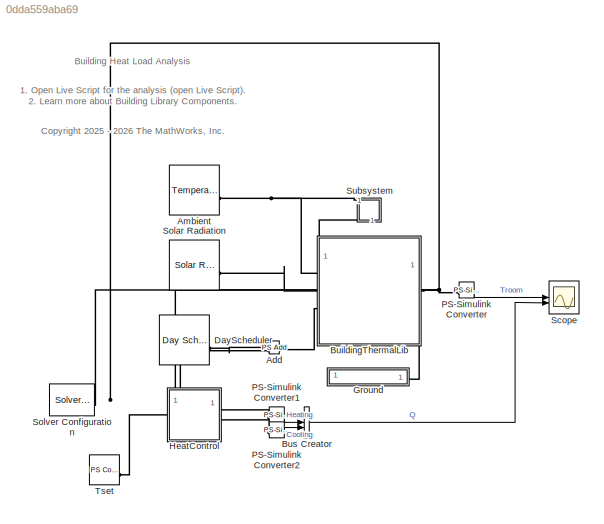
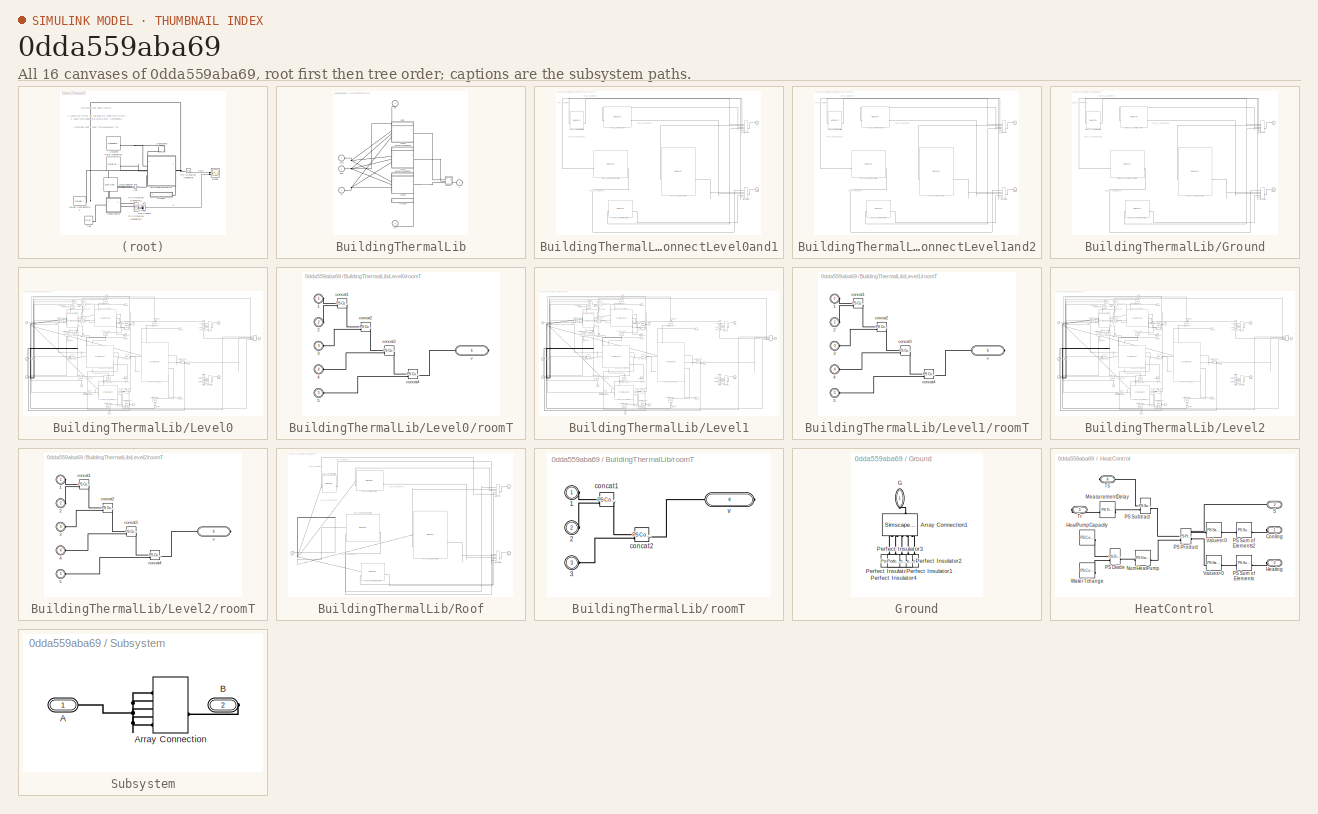
[diagram: thumbnail index - all 16 canvases of the model, root first then tree order]
MODEL slx_0dda559aba69
KIND model
CONFIG AbsTol = 1e-3
CONFIG FixedStep = 3600
CONFIG SolverName = ode1be
CONFIG StopTime = 31532400
BLOCK [Reference] Add  REF=fl_lib/Physical Signals/Functions/PS Add
  SourceBlock = fl_lib/Physical Signals/Functions/PS Add
  SourceType = PS Add
BLOCK [Reference] Ambient  REF=TemperatureSource_lib/Temperature Source
(LUT)
  SourceBlock = TemperatureSource_lib/Temperature Source\n(LUT)
  SourceType = Temperature Source\n(LUT)
BLOCK [SubSystem] BuildingThermalLib
  AncestorBlock = lib_BuildingThermal/BuildingThermalLib
  PortSchema = {"entries":[{"content":{"sides":[{"content":{"connectorIds":["LConn1","LConn2","LConn3"]},"type":"ConnectorPlacement.EquallySpacedRectSide","uuid":"02f2e3a8-9f92-46e9-bc8d-cac18fd60cc5"},{"content":{"connectorIds":["RConn1"],"side":"RIGHT"},"type":"ConnectorPlacement.EquallySpacedRectSide","uuid":"8e7293df-d9e6-4251-9074-f41050b516bb"},{"content":{"connectorIds":["LConn4"],"side":"TOP"},"type":"Co...<+423ch>
BLOCK [PMIOPort] BuildingThermalLib/Amb
  Side = Left
BLOCK [SubSystem] BuildingThermalLib/ConnectLevel0and1
  PortSchema = {"entries":[{"content":{"sides":[{"content":{},"type":"ConnectorPlacement.EquallySpacedRectSide","uuid":"3fb70943-7938-4a07-9cd8-fdf0c154c089"},{"content":{"side":"RIGHT"},"type":"ConnectorPlacement.EquallySpacedRectSide","uuid":"05a521c1-d6a1-4200-9b83-3d3259291215"},{"content":{"connectorIds":["LConn1"],"side":"TOP"},"type":"ConnectorPlacement.EquallySpacedRectSide","uuid":"456762b1-d32b-4bbd-9e...<+354ch>  <repeated x3 — deduplicated; at blocks: ConnectLevel0and1, ConnectLevel1and2, Ground>
  ShowPortLabels = none
BLOCK [SimscapeArrayConnection] BuildingThermalLib/ConnectLevel0and1/ArrayBottom
  ConcatenateDimension = 1
  Domain = foundation.thermal.thermal
  NumScalarElements = 5
BLOCK [SimscapeArrayConnection] BuildingThermalLib/ConnectLevel0and1/ArrayTop
  ConcatenateDimension = 1
  Domain = foundation.thermal.thermal
  NumScalarElements = 5
BLOCK [PMIOPort] BuildingThermalLib/ConnectLevel0and1/Bottom
  Port = 2
  Side = Right
BLOCK [Reference] BuildingThermalLib/ConnectLevel0and1/Floor_A1R1(LivingRoom)Blk  REF=WallSelector_lib/Wall Selector
  SourceBlock = WallSelector_lib/Wall Selector
  SourceType = Wall Selector
BLOCK [Reference] BuildingThermalLib/ConnectLevel0and1/Floor_A1R2(Bedroom)Blk  REF=WallSelector_lib/Wall Selector
  SourceBlock = WallSelector_lib/Wall Selector
  SourceType = Wall Selector
BLOCK [Reference] BuildingThermalLib/ConnectLevel0and1/Floor_A1R3(Kitchen)Blk  REF=WallSelector_lib/Wall Selector
  SourceBlock = WallSelector_lib/Wall Selector
  SourceType = Wall Selector
BLOCK [Reference] BuildingThermalLib/ConnectLevel0and1/Floor_A1R4(Bathroom)Blk  REF=WallSelector_lib/Wall Selector
  SourceBlock = WallSelector_lib/Wall Selector
  SourceType = Wall Selector
BLOCK [Reference] BuildingThermalLib/ConnectLevel0and1/Floor_A1R5(FireExit)Blk  REF=WallSelector_lib/Wall Selector
  SourceBlock = WallSelector_lib/Wall Selector
  SourceType = Wall Selector
BLOCK [PMIOPort] BuildingThermalLib/ConnectLevel0and1/Top
  Side = Left
BLOCK [SubSystem] BuildingThermalLib/ConnectLevel1and2
  ShowPortLabels = none
BLOCK [SimscapeArrayConnection] BuildingThermalLib/ConnectLevel1and2/ArrayBottom
  ConcatenateDimension = 1
  Domain = foundation.thermal.thermal
  NumScalarElements = 5
BLOCK [SimscapeArrayConnection] BuildingThermalLib/ConnectLevel1and2/ArrayTop
  ConcatenateDimension = 1
  Domain = foundation.thermal.thermal
  NumScalarElements = 5
BLOCK [PMIOPort] BuildingThermalLib/ConnectLevel1and2/Bottom
  Port = 2
  Side = Right
BLOCK [Reference] BuildingThermalLib/ConnectLevel1and2/Floor_A2R1(LivingRoom)Blk  REF=WallSelector_lib/Wall Selector
  SourceBlock = WallSelector_lib/Wall Selector
  SourceType = Wall Selector
BLOCK [Reference] BuildingThermalLib/ConnectLevel1and2/Floor_A2R2(Bedroom)Blk  REF=WallSelector_lib/Wall Selector
  SourceBlock = WallSelector_lib/Wall Selector
  SourceType = Wall Selector
BLOCK [Reference] BuildingThermalLib/ConnectLevel1and2/Floor_A2R3(Kitchen)Blk  REF=WallSelector_lib/Wall Selector
  SourceBlock = WallSelector_lib/Wall Selector
  SourceType = Wall Selector
BLOCK [Reference] BuildingThermalLib/ConnectLevel1and2/Floor_A2R4(Bathroom)Blk  REF=WallSelector_lib/Wall Selector
  SourceBlock = WallSelector_lib/Wall Selector
  SourceType = Wall Selector
BLOCK [Reference] BuildingThermalLib/ConnectLevel1and2/Floor_A2R5(FireExit)Blk  REF=WallSelector_lib/Wall Selector
  SourceBlock = WallSelector_lib/Wall Selector
  SourceType = Wall Selector
BLOCK [PMIOPort] BuildingThermalLib/ConnectLevel1and2/Top
  Side = Left
BLOCK [PMIOPort] BuildingThermalLib/Gr
  NameLocation = right
  Port = 6
  Side = Right
BLOCK [SubSystem] BuildingThermalLib/Ground
  ShowPortLabels = none
BLOCK [SimscapeArrayConnection] BuildingThermalLib/Ground/ArrayBottom
  ConcatenateDimension = 1
  Domain = foundation.thermal.thermal
  NumScalarElements = 5
BLOCK [SimscapeArrayConnection] BuildingThermalLib/Ground/ArrayTop
  ConcatenateDimension = 1
  Domain = foundation.thermal.thermal
  NumScalarElements = 5
BLOCK [PMIOPort] BuildingThermalLib/Ground/Bottom
  Port = 2
  Side = Right
BLOCK [Reference] BuildingThermalLib/Ground/Ground_A1R1(LivingRoom)Blk  REF=WallSelector_lib/Wall Selector
  SourceBlock = WallSelector_lib/Wall Selector
  SourceType = Wall Selector
BLOCK [Reference] BuildingThermalLib/Ground/Ground_A1R2(Bedroom)Blk  REF=WallSelector_lib/Wall Selector
  SourceBlock = WallSelector_lib/Wall Selector
  SourceType = Wall Selector
BLOCK [Reference] BuildingThermalLib/Ground/Ground_A1R3(Kitchen)Blk  REF=WallSelector_lib/Wall Selector
  SourceBlock = WallSelector_lib/Wall Selector
  SourceType = Wall Selector
BLOCK [Reference] BuildingThermalLib/Ground/Ground_A1R4(Bathroom)Blk  REF=WallSelector_lib/Wall Selector
  SourceBlock = WallSelector_lib/Wall Selector
  SourceType = Wall Selector
BLOCK [Reference] BuildingThermalLib/Ground/Ground_A1R5(FireExit)Blk  REF=WallSelector_lib/Wall Selector
  SourceBlock = WallSelector_lib/Wall Selector
  SourceType = Wall Selector
BLOCK [PMIOPort] BuildingThermalLib/Ground/Top
  Side = Left
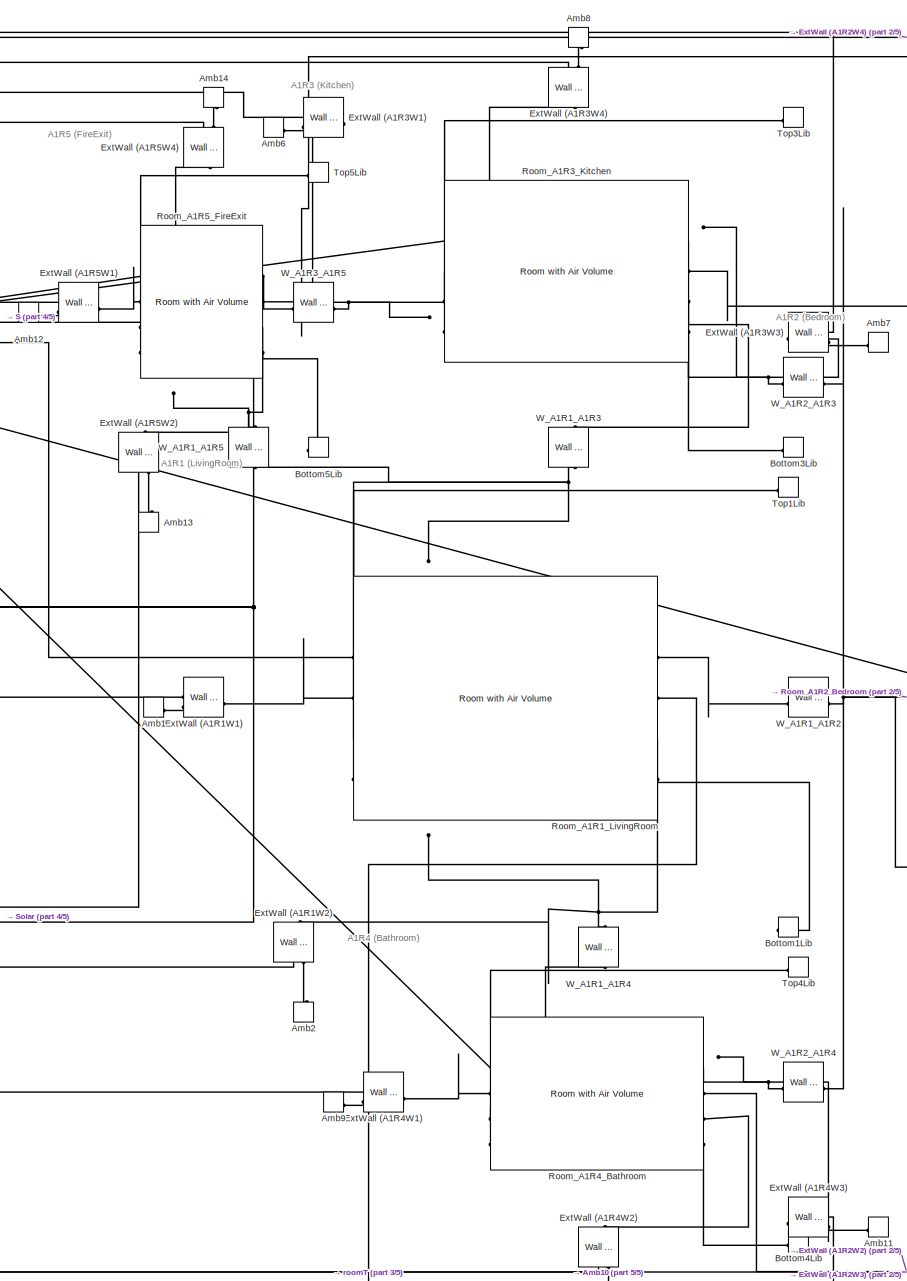
[diagram: BuildingThermalLib/Level0 - part 1/5, left side, full height]
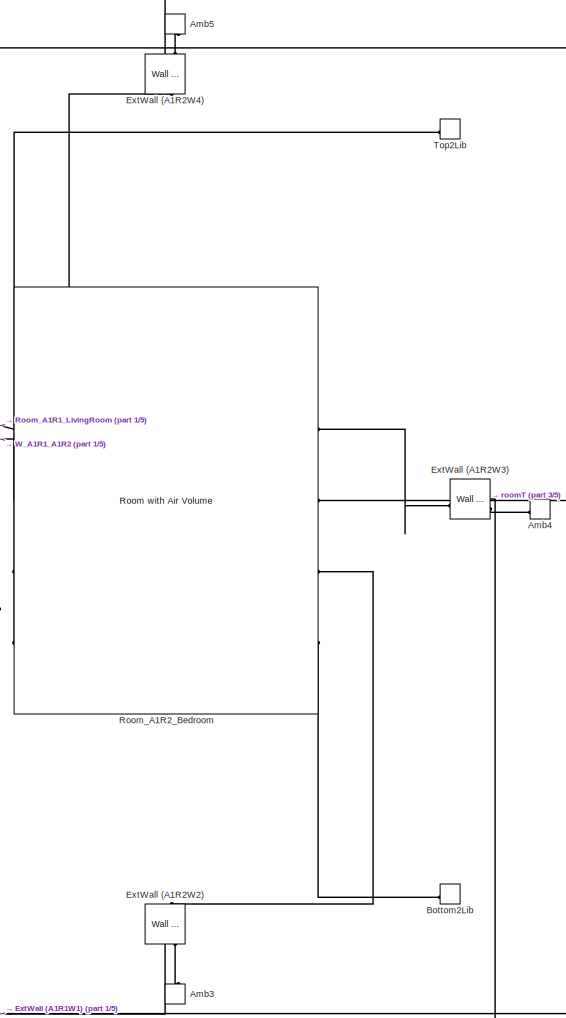
[diagram: BuildingThermalLib/Level0 - part 2/5, center side, full height]
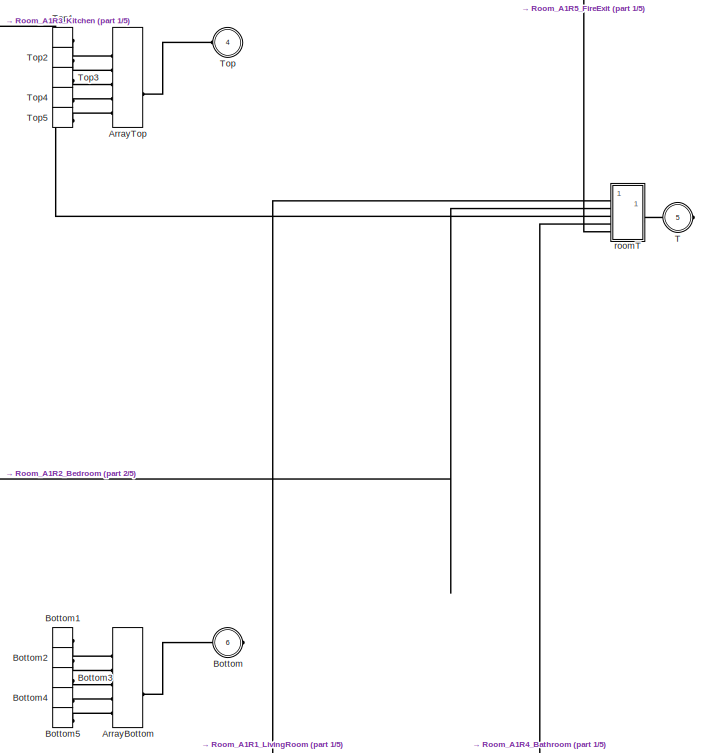
[diagram: BuildingThermalLib/Level0 - part 3/5, middle right region]
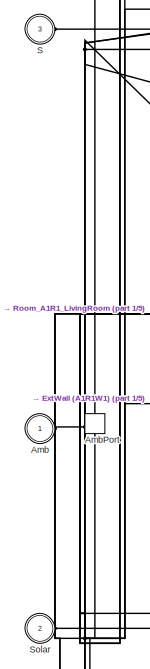
[diagram: BuildingThermalLib/Level0 - part 4/5, middle left region]
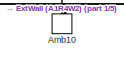
[diagram: BuildingThermalLib/Level0 - part 5/5, bottom center region]
BLOCK [SubSystem] BuildingThermalLib/Level0
  PortSchema = {"entries":[{"content":{"sides":[{"content":{"connectorIds":["LConn1","LConn2","LConn3"]},"type":"ConnectorPlacement.EquallySpacedRectSide","uuid":"5074afe5-1eb3-4154-99f1-11d56108c9ad"},{"content":{"connectorIds":["RConn1"],"side":"RIGHT"},"type":"ConnectorPlacement.EquallySpacedRectSide","uuid":"e70542b5-eb54-43d5-a4ec-335ad714f0fc"},{"content":{"connectorIds":["LConn4"],"side":"TOP"},"type":"Co...<+423ch>  <repeated x3 — deduplicated; at blocks: Level0, Level1, Level2>
BLOCK [PMIOPort] BuildingThermalLib/Level0/Amb
  Side = Left
BLOCK [ConnectionLabel] BuildingThermalLib/Level0/Amb1
  Label = A
BLOCK [ConnectionLabel] BuildingThermalLib/Level0/Amb10
  Label = A
  NameLocation = right
BLOCK [ConnectionLabel] BuildingThermalLib/Level0/Amb11
  Label = A
BLOCK [ConnectionLabel] BuildingThermalLib/Level0/Amb12
  Label = A
BLOCK [ConnectionLabel] BuildingThermalLib/Level0/Amb13
  Label = A
  NameLocation = right
BLOCK [ConnectionLabel] BuildingThermalLib/Level0/Amb14
  Label = A
  NameLocation = right
BLOCK [ConnectionLabel] BuildingThermalLib/Level0/Amb2
  Label = A
  NameLocation = right
BLOCK [ConnectionLabel] BuildingThermalLib/Level0/Amb3
  Label = A
  NameLocation = right
BLOCK [ConnectionLabel] BuildingThermalLib/Level0/Amb4
  Label = A
BLOCK [ConnectionLabel] BuildingThermalLib/Level0/Amb5
  Label = A
  NameLocation = right
BLOCK [ConnectionLabel] BuildingThermalLib/Level0/Amb6
  Label = A
BLOCK [ConnectionLabel] BuildingThermalLib/Level0/Amb7
  Label = A
BLOCK [ConnectionLabel] BuildingThermalLib/Level0/Amb8
  Label = A
  NameLocation = right
BLOCK [ConnectionLabel] BuildingThermalLib/Level0/Amb9
  Label = A
BLOCK [ConnectionLabel] BuildingThermalLib/Level0/AmbPort
  Label = A
BLOCK [SimscapeArrayConnection] BuildingThermalLib/Level0/ArrayBottom
  ConcatenateDimension = 1
  Domain = foundation.thermal.thermal
  NumScalarElements = 5
BLOCK [SimscapeArrayConnection] BuildingThermalLib/Level0/ArrayTop
  ConcatenateDimension = 1
  Domain = foundation.thermal.thermal
  NumScalarElements = 5
BLOCK [PMIOPort] BuildingThermalLib/Level0/Bottom
  Port = 6
  Side = Right
BLOCK [ConnectionLabel] BuildingThermalLib/Level0/Bottom1
  Label = Bottom1
BLOCK [ConnectionLabel] BuildingThermalLib/Level0/Bottom1Lib
  Label = Bottom1
BLOCK [ConnectionLabel] BuildingThermalLib/Level0/Bottom2
  Label = Bottom2
BLOCK [ConnectionLabel] BuildingThermalLib/Level0/Bottom2Lib
  Label = Bottom2
BLOCK [ConnectionLabel] BuildingThermalLib/Level0/Bottom3
  Label = Bottom3
BLOCK [ConnectionLabel] BuildingThermalLib/Level0/Bottom3Lib
  Label = Bottom3
BLOCK [ConnectionLabel] BuildingThermalLib/Level0/Bottom4
  Label = Bottom4
BLOCK [ConnectionLabel] BuildingThermalLib/Level0/Bottom4Lib
  Label = Bottom4
BLOCK [ConnectionLabel] BuildingThermalLib/Level0/Bottom5
  Label = Bottom5
BLOCK [ConnectionLabel] BuildingThermalLib/Level0/Bottom5Lib
  Label = Bottom5
BLOCK [Reference] BuildingThermalLib/Level0/ExtWall (A1R1W1)  REF=ExternalWall_lib/Wall External
  SourceBlock = ExternalWall_lib/Wall External
  SourceType = Wall External
BLOCK [Reference] BuildingThermalLib/Level0/ExtWall (A1R1W2)  REF=ExternalWall_lib/Wall External
  NameLocation = right
  SourceBlock = ExternalWall_lib/Wall External
  SourceType = Wall External
BLOCK [Reference] BuildingThermalLib/Level0/ExtWall (A1R2W2)  REF=ExternalWall_lib/Wall External
  NameLocation = right
  SourceBlock = ExternalWall_lib/Wall External
  SourceType = Wall External
BLOCK [Reference] BuildingThermalLib/Level0/ExtWall (A1R2W3)  REF=ExternalWall_lib/Wall External
  SourceBlock = ExternalWall_lib/Wall External
  SourceType = Wall External
BLOCK [Reference] BuildingThermalLib/Level0/ExtWall (A1R2W4)  REF=ExternalWall_lib/Wall External
  NameLocation = right
  SourceBlock = ExternalWall_lib/Wall External
  SourceType = Wall External
BLOCK [Reference] BuildingThermalLib/Level0/ExtWall (A1R3W1)  REF=ExternalWall_lib/Wall External
  SourceBlock = ExternalWall_lib/Wall External
  SourceType = Wall External
BLOCK [Reference] BuildingThermalLib/Level0/ExtWall (A1R3W3)  REF=ExternalWall_lib/Wall External
  SourceBlock = ExternalWall_lib/Wall External
  SourceType = Wall External
BLOCK [Reference] BuildingThermalLib/Level0/ExtWall (A1R3W4)  REF=ExternalWall_lib/Wall External
  NameLocation = right
  SourceBlock = ExternalWall_lib/Wall External
  SourceType = Wall External
BLOCK [Reference] BuildingThermalLib/Level0/ExtWall (A1R4W1)  REF=ExternalWall_lib/Wall External
  SourceBlock = ExternalWall_lib/Wall External
  SourceType = Wall External
BLOCK [Reference] BuildingThermalLib/Level0/ExtWall (A1R4W2)  REF=ExternalWall_lib/Wall External
  NameLocation = right
  SourceBlock = ExternalWall_lib/Wall External
  SourceType = Wall External
BLOCK [Reference] BuildingThermalLib/Level0/ExtWall (A1R4W3)  REF=ExternalWall_lib/Wall External
  SourceBlock = ExternalWall_lib/Wall External
  SourceType = Wall External
BLOCK [Reference] BuildingThermalLib/Level0/ExtWall (A1R5W1)  REF=ExternalWall_lib/Wall External
  SourceBlock = ExternalWall_lib/Wall External
  SourceType = Wall External
BLOCK [Reference] BuildingThermalLib/Level0/ExtWall (A1R5W2)  REF=ExternalWall_lib/Wall External
  NameLocation = right
  SourceBlock = ExternalWall_lib/Wall External
  SourceType = Wall External
BLOCK [Reference] BuildingThermalLib/Level0/ExtWall (A1R5W4)  REF=ExternalWall_lib/Wall External
  NameLocation = right
  SourceBlock = ExternalWall_lib/Wall External
  SourceType = Wall External
BLOCK [Reference] BuildingThermalLib/Level0/Room_A1R1_LivingRoom  REF=RoomWithAirVolume/Room with Air Volume
  SourceBlock = RoomWithAirVolume/Room with Air Volume
BLOCK [Reference] BuildingThermalLib/Level0/Room_A1R2_Bedroom  REF=RoomWithAirVolume/Room with Air Volume
  SourceBlock = RoomWithAirVolume/Room with Air Volume
BLOCK [Reference] BuildingThermalLib/Level0/Room_A1R3_Kitchen  REF=RoomWithAirVolume/Room with Air Volume
  SourceBlock = RoomWithAirVolume/Room with Air Volume
BLOCK [Reference] BuildingThermalLib/Level0/Room_A1R4_Bathroom  REF=RoomWithAirVolume/Room with Air Volume
  SourceBlock = RoomWithAirVolume/Room with Air Volume
BLOCK [Reference] BuildingThermalLib/Level0/Room_A1R5_FireExit  REF=RoomWithAirVolume/Room with Air Volume
  SourceBlock = RoomWithAirVolume/Room with Air Volume
BLOCK [PMIOPort] BuildingThermalLib/Level0/S
  Port = 3
  Side = Left
BLOCK [PMIOPort] BuildingThermalLib/Level0/Solar
  Port = 2
  Side = Left
BLOCK [PMIOPort] BuildingThermalLib/Level0/T
  Port = 5
  Side = Right
BLOCK [PMIOPort] BuildingThermalLib/Level0/Top
  Port = 4
  Side = Left
BLOCK [ConnectionLabel] BuildingThermalLib/Level0/Top1
  Label = Top1
BLOCK [ConnectionLabel] BuildingThermalLib/Level0/Top1Lib
  Label = Top1
BLOCK [ConnectionLabel] BuildingThermalLib/Level0/Top2
  Label = Top2
BLOCK [ConnectionLabel] BuildingThermalLib/Level0/Top2Lib
  Label = Top2
BLOCK [ConnectionLabel] BuildingThermalLib/Level0/Top3
  Label = Top3
BLOCK [ConnectionLabel] BuildingThermalLib/Level0/Top3Lib
  Label = Top3
BLOCK [ConnectionLabel] BuildingThermalLib/Level0/Top4
  Label = Top4
BLOCK [ConnectionLabel] BuildingThermalLib/Level0/Top4Lib
  Label = Top4
BLOCK [ConnectionLabel] BuildingThermalLib/Level0/Top5
  Label = Top5
BLOCK [ConnectionLabel] BuildingThermalLib/Level0/Top5Lib
  Label = Top5
BLOCK [Reference] BuildingThermalLib/Level0/W_A1R1_A1R2  REF=WallSelector_lib/Wall Selector
  SourceBlock = WallSelector_lib/Wall Selector
  SourceType = Wall Selector
BLOCK [Reference] BuildingThermalLib/Level0/W_A1R1_A1R3  REF=WallSelector_lib/Wall Selector
  NameLocation = right
  SourceBlock = WallSelector_lib/Wall Selector
  SourceType = Wall Selector
BLOCK [Reference] BuildingThermalLib/Level0/W_A1R1_A1R4  REF=WallSelector_lib/Wall Selector
  NameLocation = right
  SourceBlock = WallSelector_lib/Wall Selector
  SourceType = Wall Selector
BLOCK [Reference] BuildingThermalLib/Level0/W_A1R1_A1R5  REF=WallSelector_lib/Wall Selector
  NameLocation = right
  SourceBlock = WallSelector_lib/Wall Selector
  SourceType = Wall Selector
BLOCK [Reference] BuildingThermalLib/Level0/W_A1R2_A1R3  REF=WallSelector_lib/Wall Selector
  SourceBlock = WallSelector_lib/Wall Selector
  SourceType = Wall Selector
BLOCK [Reference] BuildingThermalLib/Level0/W_A1R2_A1R4  REF=WallSelector_lib/Wall Selector
  SourceBlock = WallSelector_lib/Wall Selector
  SourceType = Wall Selector
BLOCK [Reference] BuildingThermalLib/Level0/W_A1R3_A1R5  REF=WallSelector_lib/Wall Selector
  SourceBlock = WallSelector_lib/Wall Selector
  SourceType = Wall Selector
BLOCK [SubSystem] BuildingThermalLib/Level0/roomT
  ShowPortLabels = none
BLOCK [PMIOPort] BuildingThermalLib/Level0/roomT/1
  Side = Left
BLOCK [PMIOPort] BuildingThermalLib/Level0/roomT/2
  Port = 2
  Side = Left
BLOCK [PMIOPort] BuildingThermalLib/Level0/roomT/3
  Port = 3
  Side = Left
BLOCK [PMIOPort] BuildingThermalLib/Level0/roomT/4
  Port = 4
  Side = Left
BLOCK [PMIOPort] BuildingThermalLib/Level0/roomT/5
  Port = 5
  Side = Left
BLOCK [Reference] BuildingThermalLib/Level0/roomT/concat1  REF=fl_lib/Physical Signals/Functions/PS Concatenate
  SourceBlock = fl_lib/Physical Signals/Functions/PS Concatenate
  SourceType = PS Concatenate
BLOCK [Reference] BuildingThermalLib/Level0/roomT/concat2  REF=fl_lib/Physical Signals/Functions/PS Concatenate
  SourceBlock = fl_lib/Physical Signals/Functions/PS Concatenate
  SourceType = PS Concatenate
BLOCK [Reference] BuildingThermalLib/Level0/roomT/concat3  REF=fl_lib/Physical Signals/Functions/PS Concatenate
  SourceBlock = fl_lib/Physical Signals/Functions/PS Concatenate
  SourceType = PS Concatenate
BLOCK [Reference] BuildingThermalLib/Level0/roomT/concat4  REF=fl_lib/Physical Signals/Functions/PS Concatenate
  SourceBlock = fl_lib/Physical Signals/Functions/PS Concatenate
  SourceType = PS Concatenate
BLOCK [PMIOPort] BuildingThermalLib/Level0/roomT/v
  Port = 6
  Side = Right
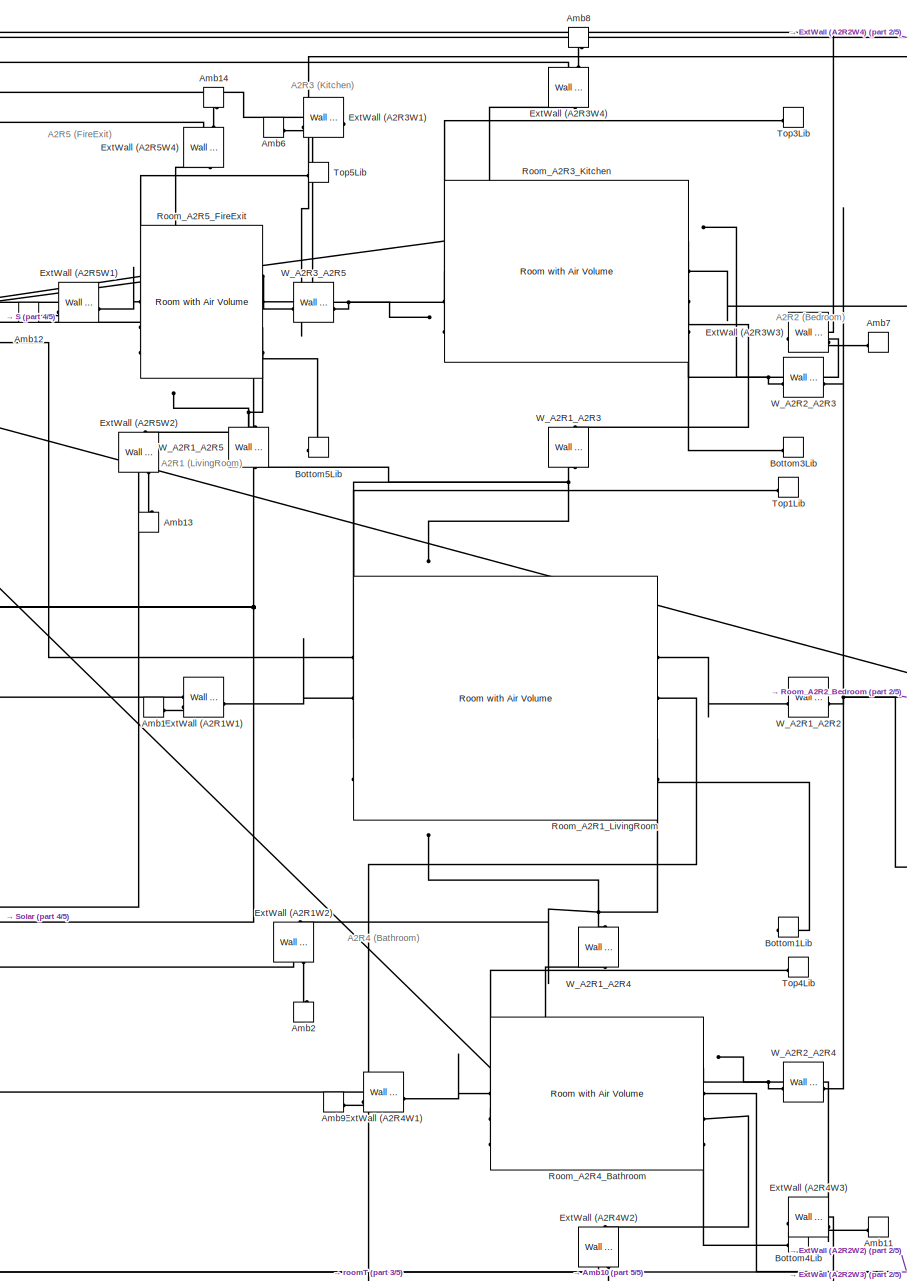
[diagram: BuildingThermalLib/Level1 - part 1/5, left side, full height]
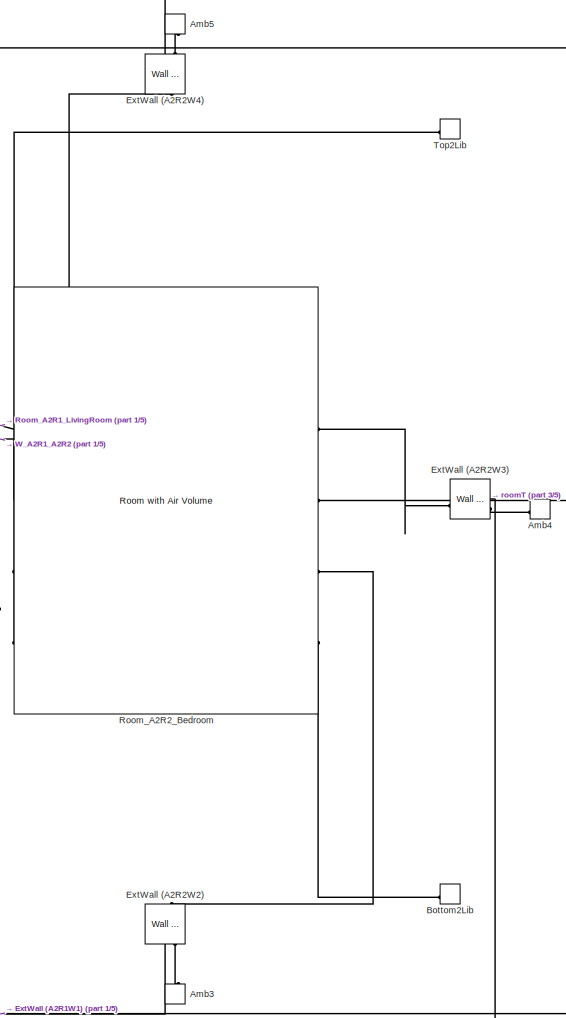
[diagram: BuildingThermalLib/Level1 - part 2/5, center side, full height]
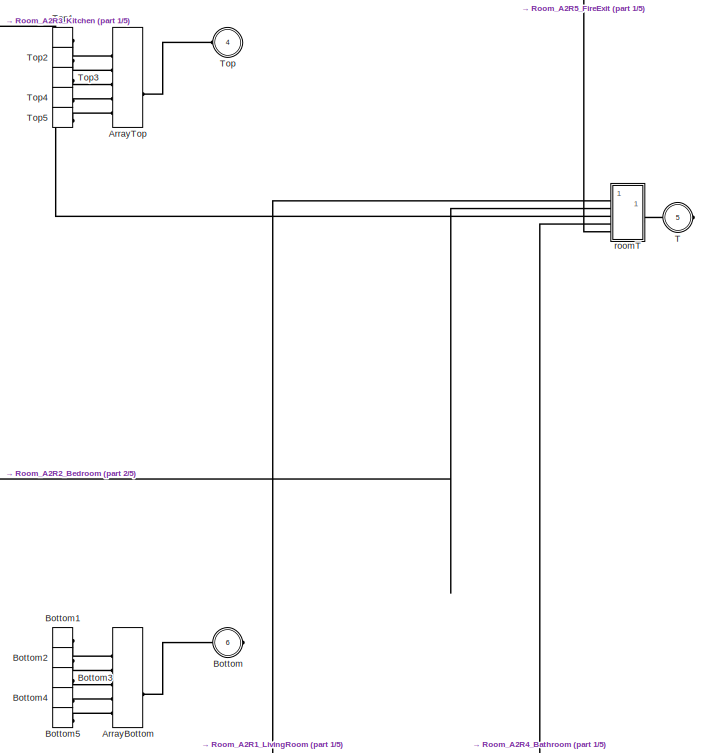
[diagram: BuildingThermalLib/Level1 - part 3/5, middle right region]
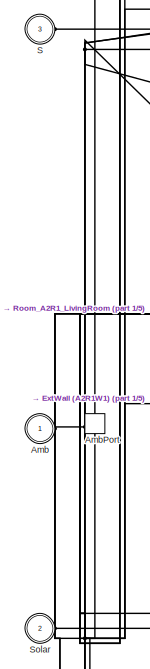
[diagram: BuildingThermalLib/Level1 - part 4/5, middle left region]
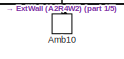
[diagram: BuildingThermalLib/Level1 - part 5/5, bottom center region]
BLOCK [SubSystem] BuildingThermalLib/Level1
BLOCK [PMIOPort] BuildingThermalLib/Level1/Amb
  Side = Left
BLOCK [ConnectionLabel] BuildingThermalLib/Level1/Amb1
  Label = A
BLOCK [ConnectionLabel] BuildingThermalLib/Level1/Amb10
  Label = A
  NameLocation = right
BLOCK [ConnectionLabel] BuildingThermalLib/Level1/Amb11
  Label = A
BLOCK [ConnectionLabel] BuildingThermalLib/Level1/Amb12
  Label = A
BLOCK [ConnectionLabel] BuildingThermalLib/Level1/Amb13
  Label = A
  NameLocation = right
BLOCK [ConnectionLabel] BuildingThermalLib/Level1/Amb14
  Label = A
  NameLocation = right
BLOCK [ConnectionLabel] BuildingThermalLib/Level1/Amb2
  Label = A
  NameLocation = right
BLOCK [ConnectionLabel] BuildingThermalLib/Level1/Amb3
  Label = A
  NameLocation = right
BLOCK [ConnectionLabel] BuildingThermalLib/Level1/Amb4
  Label = A
BLOCK [ConnectionLabel] BuildingThermalLib/Level1/Amb5
  Label = A
  NameLocation = right
BLOCK [ConnectionLabel] BuildingThermalLib/Level1/Amb6
  Label = A
BLOCK [ConnectionLabel] BuildingThermalLib/Level1/Amb7
  Label = A
BLOCK [ConnectionLabel] BuildingThermalLib/Level1/Amb8
  Label = A
  NameLocation = right
BLOCK [ConnectionLabel] BuildingThermalLib/Level1/Amb9
  Label = A
BLOCK [ConnectionLabel] BuildingThermalLib/Level1/AmbPort
  Label = A
BLOCK [SimscapeArrayConnection] BuildingThermalLib/Level1/ArrayBottom
  ConcatenateDimension = 1
  Domain = foundation.thermal.thermal
  NumScalarElements = 5
BLOCK [SimscapeArrayConnection] BuildingThermalLib/Level1/ArrayTop
  ConcatenateDimension = 1
  Domain = foundation.thermal.thermal
  NumScalarElements = 5
BLOCK [PMIOPort] BuildingThermalLib/Level1/Bottom
  Port = 6
  Side = Right
BLOCK [ConnectionLabel] BuildingThermalLib/Level1/Bottom1
  Label = Bottom1
BLOCK [ConnectionLabel] BuildingThermalLib/Level1/Bottom1Lib
  Label = Bottom1
BLOCK [ConnectionLabel] BuildingThermalLib/Level1/Bottom2
  Label = Bottom2
BLOCK [ConnectionLabel] BuildingThermalLib/Level1/Bottom2Lib
  Label = Bottom2
BLOCK [ConnectionLabel] BuildingThermalLib/Level1/Bottom3
  Label = Bottom3
BLOCK [ConnectionLabel] BuildingThermalLib/Level1/Bottom3Lib
  Label = Bottom3
BLOCK [ConnectionLabel] BuildingThermalLib/Level1/Bottom4
  Label = Bottom4
BLOCK [ConnectionLabel] BuildingThermalLib/Level1/Bottom4Lib
  Label = Bottom4
BLOCK [ConnectionLabel] BuildingThermalLib/Level1/Bottom5
  Label = Bottom5
BLOCK [ConnectionLabel] BuildingThermalLib/Level1/Bottom5Lib
  Label = Bottom5
BLOCK [Reference] BuildingThermalLib/Level1/ExtWall (A2R1W1)  REF=ExternalWall_lib/Wall External
  SourceBlock = ExternalWall_lib/Wall External
  SourceType = Wall External
BLOCK [Reference] BuildingThermalLib/Level1/ExtWall (A2R1W2)  REF=ExternalWall_lib/Wall External
  NameLocation = right
  SourceBlock = ExternalWall_lib/Wall External
  SourceType = Wall External
BLOCK [Reference] BuildingThermalLib/Level1/ExtWall (A2R2W2)  REF=ExternalWall_lib/Wall External
  NameLocation = right
  SourceBlock = ExternalWall_lib/Wall External
  SourceType = Wall External
BLOCK [Reference] BuildingThermalLib/Level1/ExtWall (A2R2W3)  REF=ExternalWall_lib/Wall External
  SourceBlock = ExternalWall_lib/Wall External
  SourceType = Wall External
BLOCK [Reference] BuildingThermalLib/Level1/ExtWall (A2R2W4)  REF=ExternalWall_lib/Wall External
  NameLocation = right
  SourceBlock = ExternalWall_lib/Wall External
  SourceType = Wall External
BLOCK [Reference] BuildingThermalLib/Level1/ExtWall (A2R3W1)  REF=ExternalWall_lib/Wall External
  SourceBlock = ExternalWall_lib/Wall External
  SourceType = Wall External
BLOCK [Reference] BuildingThermalLib/Level1/ExtWall (A2R3W3)  REF=ExternalWall_lib/Wall External
  SourceBlock = ExternalWall_lib/Wall External
  SourceType = Wall External
BLOCK [Reference] BuildingThermalLib/Level1/ExtWall (A2R3W4)  REF=ExternalWall_lib/Wall External
  NameLocation = right
  SourceBlock = ExternalWall_lib/Wall External
  SourceType = Wall External
BLOCK [Reference] BuildingThermalLib/Level1/ExtWall (A2R4W1)  REF=ExternalWall_lib/Wall External
  SourceBlock = ExternalWall_lib/Wall External
  SourceType = Wall External
BLOCK [Reference] BuildingThermalLib/Level1/ExtWall (A2R4W2)  REF=ExternalWall_lib/Wall External
  NameLocation = right
  SourceBlock = ExternalWall_lib/Wall External
  SourceType = Wall External
BLOCK [Reference] BuildingThermalLib/Level1/ExtWall (A2R4W3)  REF=ExternalWall_lib/Wall External
  SourceBlock = ExternalWall_lib/Wall External
  SourceType = Wall External
BLOCK [Reference] BuildingThermalLib/Level1/ExtWall (A2R5W1)  REF=ExternalWall_lib/Wall External
  SourceBlock = ExternalWall_lib/Wall External
  SourceType = Wall External
BLOCK [Reference] BuildingThermalLib/Level1/ExtWall (A2R5W2)  REF=ExternalWall_lib/Wall External
  NameLocation = right
  SourceBlock = ExternalWall_lib/Wall External
  SourceType = Wall External
BLOCK [Reference] BuildingThermalLib/Level1/ExtWall (A2R5W4)  REF=ExternalWall_lib/Wall External
  NameLocation = right
  SourceBlock = ExternalWall_lib/Wall External
  SourceType = Wall External
BLOCK [Reference] BuildingThermalLib/Level1/Room_A2R1_LivingRoom  REF=RoomWithAirVolume/Room with Air Volume
  SourceBlock = RoomWithAirVolume/Room with Air Volume
BLOCK [Reference] BuildingThermalLib/Level1/Room_A2R2_Bedroom  REF=RoomWithAirVolume/Room with Air Volume
  SourceBlock = RoomWithAirVolume/Room with Air Volume
BLOCK [Reference] BuildingThermalLib/Level1/Room_A2R3_Kitchen  REF=RoomWithAirVolume/Room with Air Volume
  SourceBlock = RoomWithAirVolume/Room with Air Volume
BLOCK [Reference] BuildingThermalLib/Level1/Room_A2R4_Bathroom  REF=RoomWithAirVolume/Room with Air Volume
  SourceBlock = RoomWithAirVolume/Room with Air Volume
BLOCK [Reference] BuildingThermalLib/Level1/Room_A2R5_FireExit  REF=RoomWithAirVolume/Room with Air Volume
  SourceBlock = RoomWithAirVolume/Room with Air Volume
BLOCK [PMIOPort] BuildingThermalLib/Level1/S
  Port = 3
  Side = Left
BLOCK [PMIOPort] BuildingThermalLib/Level1/Solar
  Port = 2
  Side = Left
BLOCK [PMIOPort] BuildingThermalLib/Level1/T
  Port = 5
  Side = Right
BLOCK [PMIOPort] BuildingThermalLib/Level1/Top
  Port = 4
  Side = Left
BLOCK [ConnectionLabel] BuildingThermalLib/Level1/Top1
  Label = Top1
BLOCK [ConnectionLabel] BuildingThermalLib/Level1/Top1Lib
  Label = Top1
BLOCK [ConnectionLabel] BuildingThermalLib/Level1/Top2
  Label = Top2
BLOCK [ConnectionLabel] BuildingThermalLib/Level1/Top2Lib
  Label = Top2
BLOCK [ConnectionLabel] BuildingThermalLib/Level1/Top3
  Label = Top3
BLOCK [ConnectionLabel] BuildingThermalLib/Level1/Top3Lib
  Label = Top3
BLOCK [ConnectionLabel] BuildingThermalLib/Level1/Top4
  Label = Top4
BLOCK [ConnectionLabel] BuildingThermalLib/Level1/Top4Lib
  Label = Top4
BLOCK [ConnectionLabel] BuildingThermalLib/Level1/Top5
  Label = Top5
BLOCK [ConnectionLabel] BuildingThermalLib/Level1/Top5Lib
  Label = Top5
BLOCK [Reference] BuildingThermalLib/Level1/W_A2R1_A2R2  REF=WallSelector_lib/Wall Selector
  SourceBlock = WallSelector_lib/Wall Selector
  SourceType = Wall Selector
BLOCK [Reference] BuildingThermalLib/Level1/W_A2R1_A2R3  REF=WallSelector_lib/Wall Selector
  NameLocation = right
  SourceBlock = WallSelector_lib/Wall Selector
  SourceType = Wall Selector
BLOCK [Reference] BuildingThermalLib/Level1/W_A2R1_A2R4  REF=WallSelector_lib/Wall Selector
  NameLocation = right
  SourceBlock = WallSelector_lib/Wall Selector
  SourceType = Wall Selector
BLOCK [Reference] BuildingThermalLib/Level1/W_A2R1_A2R5  REF=WallSelector_lib/Wall Selector
  NameLocation = right
  SourceBlock = WallSelector_lib/Wall Selector
  SourceType = Wall Selector
BLOCK [Reference] BuildingThermalLib/Level1/W_A2R2_A2R3  REF=WallSelector_lib/Wall Selector
  SourceBlock = WallSelector_lib/Wall Selector
  SourceType = Wall Selector
BLOCK [Reference] BuildingThermalLib/Level1/W_A2R2_A2R4  REF=WallSelector_lib/Wall Selector
  SourceBlock = WallSelector_lib/Wall Selector
  SourceType = Wall Selector
BLOCK [Reference] BuildingThermalLib/Level1/W_A2R3_A2R5  REF=WallSelector_lib/Wall Selector
  SourceBlock = WallSelector_lib/Wall Selector
  SourceType = Wall Selector
BLOCK [SubSystem] BuildingThermalLib/Level1/roomT
  ShowPortLabels = none
BLOCK [PMIOPort] BuildingThermalLib/Level1/roomT/1
  Side = Left
BLOCK [PMIOPort] BuildingThermalLib/Level1/roomT/2
  Port = 2
  Side = Left
BLOCK [PMIOPort] BuildingThermalLib/Level1/roomT/3
  Port = 3
  Side = Left
BLOCK [PMIOPort] BuildingThermalLib/Level1/roomT/4
  Port = 4
  Side = Left
BLOCK [PMIOPort] BuildingThermalLib/Level1/roomT/5
  Port = 5
  Side = Left
BLOCK [Reference] BuildingThermalLib/Level1/roomT/concat1  REF=fl_lib/Physical Signals/Functions/PS Concatenate
  SourceBlock = fl_lib/Physical Signals/Functions/PS Concatenate
  SourceType = PS Concatenate
BLOCK [Reference] BuildingThermalLib/Level1/roomT/concat2  REF=fl_lib/Physical Signals/Functions/PS Concatenate
  SourceBlock = fl_lib/Physical Signals/Functions/PS Concatenate
  SourceType = PS Concatenate
BLOCK [Reference] BuildingThermalLib/Level1/roomT/concat3  REF=fl_lib/Physical Signals/Functions/PS Concatenate
  SourceBlock = fl_lib/Physical Signals/Functions/PS Concatenate
  SourceType = PS Concatenate
BLOCK [Reference] BuildingThermalLib/Level1/roomT/concat4  REF=fl_lib/Physical Signals/Functions/PS Concatenate
  SourceBlock = fl_lib/Physical Signals/Functions/PS Concatenate
  SourceType = PS Concatenate
BLOCK [PMIOPort] BuildingThermalLib/Level1/roomT/v
  Port = 6
  Side = Right
BLOCK [SubSystem] BuildingThermalLib/Level2
BLOCK [PMIOPort] BuildingThermalLib/Level2/Amb
  Side = Left
BLOCK [ConnectionLabel] BuildingThermalLib/Level2/Amb1
  Label = A
BLOCK [ConnectionLabel] BuildingThermalLib/Level2/Amb10
  Label = A
  NameLocation = right
BLOCK [ConnectionLabel] BuildingThermalLib/Level2/Amb11
  Label = A
BLOCK [ConnectionLabel] BuildingThermalLib/Level2/Amb12
  Label = A
BLOCK [ConnectionLabel] BuildingThermalLib/Level2/Amb13
  Label = A
  NameLocation = right
BLOCK [ConnectionLabel] BuildingThermalLib/Level2/Amb14
  Label = A
  NameLocation = right
BLOCK [ConnectionLabel] BuildingThermalLib/Level2/Amb2
  Label = A
  NameLocation = right
BLOCK [ConnectionLabel] BuildingThermalLib/Level2/Amb3
  Label = A
  NameLocation = right
BLOCK [ConnectionLabel] BuildingThermalLib/Level2/Amb4
  Label = A
BLOCK [ConnectionLabel] BuildingThermalLib/Level2/Amb5
  Label = A
  NameLocation = right
BLOCK [ConnectionLabel] BuildingThermalLib/Level2/Amb6
  Label = A
BLOCK [ConnectionLabel] BuildingThermalLib/Level2/Amb7
  Label = A
BLOCK [ConnectionLabel] BuildingThermalLib/Level2/Amb8
  Label = A
  NameLocation = right
BLOCK [ConnectionLabel] BuildingThermalLib/Level2/Amb9
  Label = A
BLOCK [ConnectionLabel] BuildingThermalLib/Level2/AmbPort
  Label = A
BLOCK [SimscapeArrayConnection] BuildingThermalLib/Level2/ArrayBottom
  ConcatenateDimension = 1
  Domain = foundation.thermal.thermal
  NumScalarElements = 5
BLOCK [SimscapeArrayConnection] BuildingThermalLib/Level2/ArrayTop
  ConcatenateDimension = 1
  Domain = foundation.thermal.thermal
  NumScalarElements = 5
BLOCK [PMIOPort] BuildingThermalLib/Level2/Bottom
  Port = 6
  Side = Right
BLOCK [ConnectionLabel] BuildingThermalLib/Level2/Bottom1
  Label = Bottom1
BLOCK [ConnectionLabel] BuildingThermalLib/Level2/Bottom1Lib
  Label = Bottom1
BLOCK [ConnectionLabel] BuildingThermalLib/Level2/Bottom2
  Label = Bottom2
BLOCK [ConnectionLabel] BuildingThermalLib/Level2/Bottom2Lib
  Label = Bottom2
BLOCK [ConnectionLabel] BuildingThermalLib/Level2/Bottom3
  Label = Bottom3
BLOCK [ConnectionLabel] BuildingThermalLib/Level2/Bottom3Lib
  Label = Bottom3
BLOCK [ConnectionLabel] BuildingThermalLib/Level2/Bottom4
  Label = Bottom4
BLOCK [ConnectionLabel] BuildingThermalLib/Level2/Bottom4Lib
  Label = Bottom4
BLOCK [ConnectionLabel] BuildingThermalLib/Level2/Bottom5
  Label = Bottom5
BLOCK [ConnectionLabel] BuildingThermalLib/Level2/Bottom5Lib
  Label = Bottom5
BLOCK [Reference] BuildingThermalLib/Level2/ExtWall (A3R1W1)  REF=ExternalWall_lib/Wall External
  SourceBlock = ExternalWall_lib/Wall External
  SourceType = Wall External
BLOCK [Reference] BuildingThermalLib/Level2/ExtWall (A3R1W2)  REF=ExternalWall_lib/Wall External
  NameLocation = right
  SourceBlock = ExternalWall_lib/Wall External
  SourceType = Wall External
BLOCK [Reference] BuildingThermalLib/Level2/ExtWall (A3R2W2)  REF=ExternalWall_lib/Wall External
  NameLocation = right
  SourceBlock = ExternalWall_lib/Wall External
  SourceType = Wall External
BLOCK [Reference] BuildingThermalLib/Level2/ExtWall (A3R2W3)  REF=ExternalWall_lib/Wall External
  SourceBlock = ExternalWall_lib/Wall External
  SourceType = Wall External
BLOCK [Reference] BuildingThermalLib/Level2/ExtWall (A3R2W4)  REF=ExternalWall_lib/Wall External
  NameLocation = right
  SourceBlock = ExternalWall_lib/Wall External
  SourceType = Wall External
BLOCK [Reference] BuildingThermalLib/Level2/ExtWall (A3R3W1)  REF=ExternalWall_lib/Wall External
  SourceBlock = ExternalWall_lib/Wall External
  SourceType = Wall External
BLOCK [Reference] BuildingThermalLib/Level2/ExtWall (A3R3W3)  REF=ExternalWall_lib/Wall External
  SourceBlock = ExternalWall_lib/Wall External
  SourceType = Wall External
BLOCK [Reference] BuildingThermalLib/Level2/ExtWall (A3R3W4)  REF=ExternalWall_lib/Wall External
  NameLocation = right
  SourceBlock = ExternalWall_lib/Wall External
  SourceType = Wall External
BLOCK [Reference] BuildingThermalLib/Level2/ExtWall (A3R4W1)  REF=ExternalWall_lib/Wall External
  SourceBlock = ExternalWall_lib/Wall External
  SourceType = Wall External
BLOCK [Reference] BuildingThermalLib/Level2/ExtWall (A3R4W2)  REF=ExternalWall_lib/Wall External
  NameLocation = right
  SourceBlock = ExternalWall_lib/Wall External
  SourceType = Wall External
BLOCK [Reference] BuildingThermalLib/Level2/ExtWall (A3R4W3)  REF=ExternalWall_lib/Wall External
  SourceBlock = ExternalWall_lib/Wall External
  SourceType = Wall External
BLOCK [Reference] BuildingThermalLib/Level2/ExtWall (A3R5W1)  REF=ExternalWall_lib/Wall External
  SourceBlock = ExternalWall_lib/Wall External
  SourceType = Wall External
BLOCK [Reference] BuildingThermalLib/Level2/ExtWall (A3R5W2)  REF=ExternalWall_lib/Wall External
  NameLocation = right
  SourceBlock = ExternalWall_lib/Wall External
  SourceType = Wall External
BLOCK [Reference] BuildingThermalLib/Level2/ExtWall (A3R5W4)  REF=ExternalWall_lib/Wall External
  NameLocation = right
  SourceBlock = ExternalWall_lib/Wall External
  SourceType = Wall External
BLOCK [Reference] BuildingThermalLib/Level2/Room_A3R1_LivingRoom  REF=RoomWithAirVolume/Room with Air Volume
  SourceBlock = RoomWithAirVolume/Room with Air Volume
BLOCK [Reference] BuildingThermalLib/Level2/Room_A3R2_Bedroom  REF=RoomWithAirVolume/Room with Air Volume
  SourceBlock = RoomWithAirVolume/Room with Air Volume
BLOCK [Reference] BuildingThermalLib/Level2/Room_A3R3_Kitchen  REF=RoomWithAirVolume/Room with Air Volume
  SourceBlock = RoomWithAirVolume/Room with Air Volume
BLOCK [Reference] BuildingThermalLib/Level2/Room_A3R4_Bathroom  REF=RoomWithAirVolume/Room with Air Volume
  SourceBlock = RoomWithAirVolume/Room with Air Volume
BLOCK [Reference] BuildingThermalLib/Level2/Room_A3R5_FireExit  REF=RoomWithAirVolume/Room with Air Volume
  SourceBlock = RoomWithAirVolume/Room with Air Volume
BLOCK [PMIOPort] BuildingThermalLib/Level2/S
  Port = 3
  Side = Left
BLOCK [PMIOPort] BuildingThermalLib/Level2/Solar
  Port = 2
  Side = Left
BLOCK [PMIOPort] BuildingThermalLib/Level2/T
  Port = 5
  Side = Right
BLOCK [PMIOPort] BuildingThermalLib/Level2/Top
  Port = 4
  Side = Left
BLOCK [ConnectionLabel] BuildingThermalLib/Level2/Top1
  Label = Top1
BLOCK [ConnectionLabel] BuildingThermalLib/Level2/Top1Lib
  Label = Top1
BLOCK [ConnectionLabel] BuildingThermalLib/Level2/Top2
  Label = Top2
BLOCK [ConnectionLabel] BuildingThermalLib/Level2/Top2Lib
  Label = Top2
BLOCK [ConnectionLabel] BuildingThermalLib/Level2/Top3
  Label = Top3
BLOCK [ConnectionLabel] BuildingThermalLib/Level2/Top3Lib
  Label = Top3
BLOCK [ConnectionLabel] BuildingThermalLib/Level2/Top4
  Label = Top4
BLOCK [ConnectionLabel] BuildingThermalLib/Level2/Top4Lib
  Label = Top4
BLOCK [ConnectionLabel] BuildingThermalLib/Level2/Top5
  Label = Top5
BLOCK [ConnectionLabel] BuildingThermalLib/Level2/Top5Lib
  Label = Top5
BLOCK [Reference] BuildingThermalLib/Level2/W_A3R1_A3R2  REF=WallSelector_lib/Wall Selector
  SourceBlock = WallSelector_lib/Wall Selector
  SourceType = Wall Selector
BLOCK [Reference] BuildingThermalLib/Level2/W_A3R1_A3R3  REF=WallSelector_lib/Wall Selector
  NameLocation = right
  SourceBlock = WallSelector_lib/Wall Selector
  SourceType = Wall Selector
BLOCK [Reference] BuildingThermalLib/Level2/W_A3R1_A3R4  REF=WallSelector_lib/Wall Selector
  NameLocation = right
  SourceBlock = WallSelector_lib/Wall Selector
  SourceType = Wall Selector
BLOCK [Reference] BuildingThermalLib/Level2/W_A3R1_A3R5  REF=WallSelector_lib/Wall Selector
  NameLocation = right
  SourceBlock = WallSelector_lib/Wall Selector
  SourceType = Wall Selector
BLOCK [Reference] BuildingThermalLib/Level2/W_A3R2_A3R3  REF=WallSelector_lib/Wall Selector
  SourceBlock = WallSelector_lib/Wall Selector
  SourceType = Wall Selector
BLOCK [Reference] BuildingThermalLib/Level2/W_A3R2_A3R4  REF=WallSelector_lib/Wall Selector
  SourceBlock = WallSelector_lib/Wall Selector
  SourceType = Wall Selector
BLOCK [Reference] BuildingThermalLib/Level2/W_A3R3_A3R5  REF=WallSelector_lib/Wall Selector
  SourceBlock = WallSelector_lib/Wall Selector
  SourceType = Wall Selector
BLOCK [SubSystem] BuildingThermalLib/Level2/roomT
  ShowPortLabels = none
BLOCK [PMIOPort] BuildingThermalLib/Level2/roomT/1
  Side = Left
BLOCK [PMIOPort] BuildingThermalLib/Level2/roomT/2
  Port = 2
  Side = Left
BLOCK [PMIOPort] BuildingThermalLib/Level2/roomT/3
  Port = 3
  Side = Left
BLOCK [PMIOPort] BuildingThermalLib/Level2/roomT/4
  Port = 4
  Side = Left
BLOCK [PMIOPort] BuildingThermalLib/Level2/roomT/5
  Port = 5
  Side = Left
BLOCK [Reference] BuildingThermalLib/Level2/roomT/concat1  REF=fl_lib/Physical Signals/Functions/PS Concatenate
  SourceBlock = fl_lib/Physical Signals/Functions/PS Concatenate
  SourceType = PS Concatenate
BLOCK [Reference] BuildingThermalLib/Level2/roomT/concat2  REF=fl_lib/Physical Signals/Functions/PS Concatenate
  SourceBlock = fl_lib/Physical Signals/Functions/PS Concatenate
  SourceType = PS Concatenate
BLOCK [Reference] BuildingThermalLib/Level2/roomT/concat3  REF=fl_lib/Physical Signals/Functions/PS Concatenate
  SourceBlock = fl_lib/Physical Signals/Functions/PS Concatenate
  SourceType = PS Concatenate
BLOCK [Reference] BuildingThermalLib/Level2/roomT/concat4  REF=fl_lib/Physical Signals/Functions/PS Concatenate
  SourceBlock = fl_lib/Physical Signals/Functions/PS Concatenate
  SourceType = PS Concatenate
BLOCK [PMIOPort] BuildingThermalLib/Level2/roomT/v
  Port = 6
  Side = Right
BLOCK [PMIOPort] BuildingThermalLib/Rf
  NameLocation = right
  Port = 4
  Side = Left
BLOCK [SubSystem] BuildingThermalLib/Roof
  PortSchema = {"entries":[{"content":{"sides":[{"content":{"connectorIds":["LConn1"]},"type":"ConnectorPlacement.EquallySpacedRectSide","uuid":"0be4c07b-4a16-48eb-ba1a-eb19140d6e21"},{"content":{"side":"RIGHT"},"type":"ConnectorPlacement.EquallySpacedRectSide","uuid":"1d83c5b9-3651-480e-b537-4a87f3d8118d"},{"content":{"connectorIds":["LConn2"],"side":"TOP"},"type":"ConnectorPlacement.EquallySpacedRectSide","uui...<+379ch>
  ShowPortLabels = none
BLOCK [SimscapeArrayConnection] BuildingThermalLib/Roof/ArrayBottom
  ConcatenateDimension = 1
  Domain = foundation.thermal.thermal
  NumScalarElements = 5
BLOCK [SimscapeArrayConnection] BuildingThermalLib/Roof/ArrayTop
  ConcatenateDimension = 1
  Domain = foundation.thermal.thermal
  NumScalarElements = 5
BLOCK [PMIOPort] BuildingThermalLib/Roof/Bottom
  Port = 3
  Side = Right
BLOCK [Reference] BuildingThermalLib/Roof/Roof_A3R1(LivingRoom)Blk  REF=ExternalWall_lib/Wall External
  SourceBlock = ExternalWall_lib/Wall External
  SourceType = Wall External
BLOCK [Reference] BuildingThermalLib/Roof/Roof_A3R2(Bedroom)Blk  REF=ExternalWall_lib/Wall External
  SourceBlock = ExternalWall_lib/Wall External
  SourceType = Wall External
BLOCK [Reference] BuildingThermalLib/Roof/Roof_A3R3(Kitchen)Blk  REF=ExternalWall_lib/Wall External
  SourceBlock = ExternalWall_lib/Wall External
  SourceType = Wall External
BLOCK [Reference] BuildingThermalLib/Roof/Roof_A3R4(Bathroom)Blk  REF=ExternalWall_lib/Wall External
  SourceBlock = ExternalWall_lib/Wall External
  SourceType = Wall External
BLOCK [Reference] BuildingThermalLib/Roof/Roof_A3R5(FireExit)Blk  REF=ExternalWall_lib/Wall External
  SourceBlock = ExternalWall_lib/Wall External
  SourceType = Wall External
BLOCK [PMIOPort] BuildingThermalLib/Roof/Solar
  Side = Left
BLOCK [PMIOPort] BuildingThermalLib/Roof/Top
  Port = 2
  Side = Left
BLOCK [PMIOPort] BuildingThermalLib/S
  Port = 3
  Side = Left
BLOCK [PMIOPort] BuildingThermalLib/Solar
  Port = 2
  Side = Left
BLOCK [PMIOPort] BuildingThermalLib/T
  Port = 5
  Side = Right
BLOCK [SubSystem] BuildingThermalLib/roomT
  ShowPortLabels = none
BLOCK [PMIOPort] BuildingThermalLib/roomT/1
  Side = Left
BLOCK [PMIOPort] BuildingThermalLib/roomT/2
  Port = 2
  Side = Left
BLOCK [PMIOPort] BuildingThermalLib/roomT/3
  Port = 3
  Side = Left
BLOCK [Reference] BuildingThermalLib/roomT/concat1  REF=fl_lib/Physical Signals/Functions/PS Concatenate
  SourceBlock = fl_lib/Physical Signals/Functions/PS Concatenate
  SourceType = PS Concatenate
BLOCK [Reference] BuildingThermalLib/roomT/concat2  REF=fl_lib/Physical Signals/Functions/PS Concatenate
  SourceBlock = fl_lib/Physical Signals/Functions/PS Concatenate
  SourceType = PS Concatenate
BLOCK [PMIOPort] BuildingThermalLib/roomT/v
  Port = 4
  Side = Right
BLOCK [BusCreator] Bus Creator
  DisplayOption = bar
  InheritFromInputs = on
  Inputs = 2
BLOCK [Reference] DayScheduler  REF=DayScheduler_lib/Day Scheduler
  SourceBlock = DayScheduler_lib/Day Scheduler
  SourceType = Day Scheduler
BLOCK [SubSystem] Ground
  PortSchema = {"entries":[{"content":{"sides":[{"content":{},"type":"ConnectorPlacement.EquallySpacedRectSide","uuid":"0537d5ec-4a94-45e2-a0dd-9776fcfbef5c"},{"content":{"side":"RIGHT"},"type":"ConnectorPlacement.EquallySpacedRectSide","uuid":"ea52c298-5a99-4146-b05a-e741d3f0a75b"},{"content":{"connectorIds":["LConn1"],"side":"TOP"},"type":"ConnectorPlacement.EquallySpacedRectSide","uuid":"d3185eb6-f3c0-4f94-b2...<+202ch>
BLOCK [SimscapeArrayConnection] Ground/Array Connection1
  ConcatenateDimension = 1
  Domain = foundation.thermal.thermal
  NameLocation = right
  NumScalarElements = 5
BLOCK [PMIOPort] Ground/G
  NameLocation = right
  Side = Left
BLOCK [Reference] Ground/Perfect Insulator  REF=fl_lib/Thermal/Thermal Elements/Perfect Insulator
  NameLocation = right
  SourceBlock = fl_lib/Thermal/Thermal Elements/Perfect Insulator
  SourceType = Perfect Insulator
BLOCK [Reference] Ground/Perfect Insulator1  REF=fl_lib/Thermal/Thermal Elements/Perfect Insulator
  NameLocation = right
  SourceBlock = fl_lib/Thermal/Thermal Elements/Perfect Insulator
  SourceType = Perfect Insulator
BLOCK [Reference] Ground/Perfect Insulator2  REF=fl_lib/Thermal/Thermal Elements/Perfect Insulator
  NameLocation = right
  SourceBlock = fl_lib/Thermal/Thermal Elements/Perfect Insulator
  SourceType = Perfect Insulator
BLOCK [Reference] Ground/Perfect Insulator3  REF=fl_lib/Thermal/Thermal Elements/Perfect Insulator
  NameLocation = right
  SourceBlock = fl_lib/Thermal/Thermal Elements/Perfect Insulator
  SourceType = Perfect Insulator
BLOCK [Reference] Ground/Perfect Insulator4  REF=fl_lib/Thermal/Thermal Elements/Perfect Insulator
  NameLocation = right
  SourceBlock = fl_lib/Thermal/Thermal Elements/Perfect Insulator
  SourceType = Perfect Insulator
BLOCK [SubSystem] HeatControl
  AncestorBlock = HeatSourceControl/Heat Source Control
BLOCK [PMIOPort] HeatControl/Cooling
  NameLocation = right
  Side = Left
BLOCK [Reference] HeatControl/HeatPumpCapacity  REF=fl_lib/Physical Signals/Sources/PS Constant
  NameLocation = left
  SourceBlock = fl_lib/Physical Signals/Sources/PS Constant
  SourceType = PS Constant
BLOCK [PMIOPort] HeatControl/Heating
  NameLocation = right
  Port = 2
  Side = Left
BLOCK [Reference] HeatControl/MeasurementDelay  REF=fl_lib/Physical Signals/Linear Operators/PS Transfer Function
  SourceBlock = fl_lib/Physical Signals/Linear Operators/PS Transfer Function
  SourceType = PS Transfer Function
BLOCK [Reference] HeatControl/NumHeatPump  REF=fl_lib/Physical Signals/Functions/PS Gain
  SourceBlock = fl_lib/Physical Signals/Functions/PS Gain
  SourceType = PS Gain
BLOCK [Reference] HeatControl/PS Divide  REF=fl_lib/Physical Signals/Functions/PS Divide
  SourceBlock = fl_lib/Physical Signals/Functions/PS Divide
  SourceType = PS Divide
BLOCK [Reference] HeatControl/PS Product  REF=fl_lib/Physical Signals/Functions/PS Product
  SourceBlock = fl_lib/Physical Signals/Functions/PS Product
  SourceType = PS Product
BLOCK [Reference] HeatControl/PS Subtract  REF=fl_lib/Physical Signals/Functions/PS Subtract
  SourceBlock = fl_lib/Physical Signals/Functions/PS Subtract
  SourceType = PS Subtract
BLOCK [Reference] HeatControl/PS Sum of Elements  REF=fl_lib/Physical Signals/Functions/PS Sum of Elements
  SourceBlock = fl_lib/Physical Signals/Functions/PS Sum of Elements
  SourceType = PS Sum of Elements
BLOCK [Reference] HeatControl/PS Sum of Elements2  REF=fl_lib/Physical Signals/Functions/PS Sum of Elements
  SourceBlock = fl_lib/Physical Signals/Functions/PS Sum of Elements
  SourceType = PS Sum of Elements
BLOCK [PMIOPort] HeatControl/S
  NameLocation = right
  Port = 3
  Side = Left
BLOCK [PMIOPort] HeatControl/Tr
  NameLocation = left
  Port = 5
  Side = Right
BLOCK [PMIOPort] HeatControl/Ts
  NameLocation = left
  Port = 4
  Side = Right
BLOCK [Reference] HeatControl/Values<0  REF=fl_lib/Physical Signals/Nonlinear Operators/PS Saturation
  SourceBlock = fl_lib/Physical Signals/Nonlinear Operators/PS Saturation
  SourceType = PS Saturation
BLOCK [Reference] HeatControl/Values>0  REF=fl_lib/Physical Signals/Nonlinear Operators/PS Saturation
  SourceBlock = fl_lib/Physical Signals/Nonlinear Operators/PS Saturation
  SourceType = PS Saturation
BLOCK [Reference] HeatControl/WaterTchange  REF=fl_lib/Physical Signals/Sources/PS Constant
  NameLocation = left
  SourceBlock = fl_lib/Physical Signals/Sources/PS Constant
  SourceType = PS Constant
BLOCK [Reference] PS-Simulink Converter  REF=nesl_utility/PS-Simulink
Converter
  SourceBlock = nesl_utility/PS-Simulink\nConverter
  SourceType = PS-Simulink\nConverter
BLOCK [Reference] PS-Simulink Converter1  REF=nesl_utility/PS-Simulink
Converter
  SourceBlock = nesl_utility/PS-Simulink\nConverter
  SourceType = PS-Simulink\nConverter
BLOCK [Reference] PS-Simulink Converter2  REF=nesl_utility/PS-Simulink
Converter
  SourceBlock = nesl_utility/PS-Simulink\nConverter
  SourceType = PS-Simulink\nConverter
BLOCK [Scope] Scope
  ActiveDisplayYMaximum = 1
  ActiveDisplayYMinimum = -1
  Floating = off
  GraphicalSettings = {"Style":{"BackgroundColor":[0.12941176470588237,0.12941176470588237,0.12941176470588237],"AxesColor":[0.07058823529411765,0.07058823529411765,0.07058823529411765],"LabelsColor":[0.8509803921568627,0.8509803921568627,0.8509803921568627],"PreserveColors":false,"Visible":[true,true,true,true,true,true,true,true,true,true,true,true,true,true,true,true,true],"LineStyle":["-","-","-","-","-","-","-","-...<+4146ch>
  LayoutDimensionsString = [1,2]
  MultipleDisplayCache = [{"MaxYLimMag":1,"MaxYLimReal":1,"MinYLimMag":0,"MinYLimReal":-1,"PlotAsMagnitudePhase":false,"ShowGrid":true,"ShowLegend":false,"Title":"%<SignalLabel>","YLabel":""},{"MaxYLimMag":1,"MaxYLimReal":1,"MinYLimMag":0,"MinYLimReal":-1,"PlotAsMagnitudePhase":false,"ShowGrid":true,"ShowLegend":false,"Title":"%<SignalLabel>","YLabel":""}]
  NumInputPorts = 2
  ScopeFrameLocation = window
  WasSavedAsWebScope = on
  WindowPosition = [894.000000,315.000000,765.000000,420.000000,]
BLOCK [Reference] Solar Radiation  REF=SolarRadiationAtLocation_lib/Solar Radiation
(LUT)
  SourceBlock = SolarRadiationAtLocation_lib/Solar Radiation\n(LUT)
  SourceType = Solar Radiation\n(LUT)
BLOCK [Reference] Solver Configuration  REF=nesl_utility/Solver
Configuration
  SourceBlock = nesl_utility/Solver\nConfiguration
  SourceType = Solver\nConfiguration
BLOCK [SubSystem] Subsystem
  NameLocation = left
BLOCK [PMIOPort] Subsystem/A
  Side = Left
BLOCK [SimscapeArrayConnection] Subsystem/Array Connection
  ConcatenateDimension = 1
  Domain = foundation.thermal.thermal
  NumScalarElements = 5
BLOCK [PMIOPort] Subsystem/B
  Port = 2
  Side = Right
BLOCK [Reference] Tset  REF=fl_lib/Physical Signals/Sources/PS Constant
  SourceBlock = fl_lib/Physical Signals/Sources/PS Constant
  SourceType = PS Constant
ANNOTATION (root): 1. Open Live Script for the analysis ( open Live Script ). 2. Learn more about Building Library Components .
ANNOTATION (root): Building Heat Load Analysis
ANNOTATION (root): <copyright redacted>
ANNOTATION BuildingThermalLib/ConnectLevel0and1: Floor_A1R1(LivingRoom)
ANNOTATION BuildingThermalLib/ConnectLevel0and1: Floor_A1R2(Bedroom)
ANNOTATION BuildingThermalLib/ConnectLevel0and1: Floor_A1R3(Kitchen)
ANNOTATION BuildingThermalLib/ConnectLevel0and1: Floor_A1R4(Bathroom)
ANNOTATION BuildingThermalLib/ConnectLevel0and1: Floor_A1R5(FireExit)
ANNOTATION BuildingThermalLib/ConnectLevel1and2: Floor_A2R1(LivingRoom)
ANNOTATION BuildingThermalLib/ConnectLevel1and2: Floor_A2R2(Bedroom)
ANNOTATION BuildingThermalLib/ConnectLevel1and2: Floor_A2R3(Kitchen)
ANNOTATION BuildingThermalLib/ConnectLevel1and2: Floor_A2R4(Bathroom)
ANNOTATION BuildingThermalLib/ConnectLevel1and2: Floor_A2R5(FireExit)
ANNOTATION BuildingThermalLib/Ground: Ground_A1R1(LivingRoom)
ANNOTATION BuildingThermalLib/Ground: Ground_A1R2(Bedroom)
ANNOTATION BuildingThermalLib/Ground: Ground_A1R3(Kitchen)
ANNOTATION BuildingThermalLib/Ground: Ground_A1R4(Bathroom)
ANNOTATION BuildingThermalLib/Ground: Ground_A1R5(FireExit)
ANNOTATION BuildingThermalLib/Level0: A1R1 (LivingRoom)
ANNOTATION BuildingThermalLib/Level0: A1R2 (Bedroom)
ANNOTATION BuildingThermalLib/Level0: A1R3 (Kitchen)
ANNOTATION BuildingThermalLib/Level0: A1R4 (Bathroom)
ANNOTATION BuildingThermalLib/Level0: A1R5 (FireExit)
ANNOTATION BuildingThermalLib/Level1: A2R1 (LivingRoom)
ANNOTATION BuildingThermalLib/Level1: A2R2 (Bedroom)
ANNOTATION BuildingThermalLib/Level1: A2R3 (Kitchen)
ANNOTATION BuildingThermalLib/Level1: A2R4 (Bathroom)
ANNOTATION BuildingThermalLib/Level1: A2R5 (FireExit)
ANNOTATION BuildingThermalLib/Level2: A3R1 (LivingRoom)
ANNOTATION BuildingThermalLib/Level2: A3R2 (Bedroom)
ANNOTATION BuildingThermalLib/Level2: A3R3 (Kitchen)
ANNOTATION BuildingThermalLib/Level2: A3R4 (Bathroom)
ANNOTATION BuildingThermalLib/Level2: A3R5 (FireExit)
ANNOTATION BuildingThermalLib/Roof: Roof_A3R1(LivingRoom)
ANNOTATION BuildingThermalLib/Roof: Roof_A3R2(Bedroom)
ANNOTATION BuildingThermalLib/Roof: Roof_A3R3(Kitchen)
ANNOTATION BuildingThermalLib/Roof: Roof_A3R4(Bathroom)
ANNOTATION BuildingThermalLib/Roof: Roof_A3R5(FireExit)
LINE Bus Creator:1 -> Scope:2
LINE PS-Simulink Converter1:1 -> Bus Creator:1
LINE PS-Simulink Converter2:1 -> Bus Creator:2
LINE PS-Simulink Converter:1 -> Scope:1
PLINE Add:LConn1 -- DayScheduler:RConn1
PLINE Add:LConn2 -- HeatControl:LConn3
PLINE Add:RConn1 -- BuildingThermalLib:LConn3
PNET net1: Ambient:RConn1 -- BuildingThermalLib:LConn1 -- Subsystem:LConn1
PLINE BuildingThermalLib:LConn2 -- Solar Radiation:RConn1
PLINE BuildingThermalLib:LConn4 -- Subsystem:RConn1
PNET net2: BuildingThermalLib:RConn1 -- HeatControl:RConn2 -- PS-Simulink Converter:LConn1 -- Solver Configuration:RConn1
PLINE BuildingThermalLib:RConn2 -- Ground:LConn1
PLINE Ground/Array Connection1:LConn1 -- Ground/Perfect Insulator:LConn1
PLINE Ground/Array Connection1:LConn2 -- Ground/Perfect Insulator4:LConn1
PLINE Ground/Array Connection1:LConn3 -- Ground/Perfect Insulator3:LConn1
PLINE Ground/Array Connection1:LConn4 -- Ground/Perfect Insulator2:LConn1
PLINE Ground/Array Connection1:LConn5 -- Ground/Perfect Insulator1:LConn1
PLINE Ground/Array Connection1:RConn1 -- Ground/G:RConn1
PLINE HeatControl:LConn1 -- PS-Simulink Converter2:LConn1
PLINE HeatControl:LConn2 -- PS-Simulink Converter1:LConn1
PLINE HeatControl:RConn1 -- Tset:RConn1
PNET net3: Subsystem/A:RConn1 -- Subsystem/Array Connection:LConn1 -- Subsystem/Array Connection:LConn2 -- Subsystem/Array Connection:LConn3 -- Subsystem/Array Connection:LConn4 -- Subsystem/Array Connection:LConn5
PLINE Subsystem/Array Connection:RConn1 -- Subsystem/B:RConn1
note: PNET lines group multi-terminal physical nets as a canonical sorted terminal list (undirected conserving connections); 2-terminal nets keep the pairwise PLINE form
